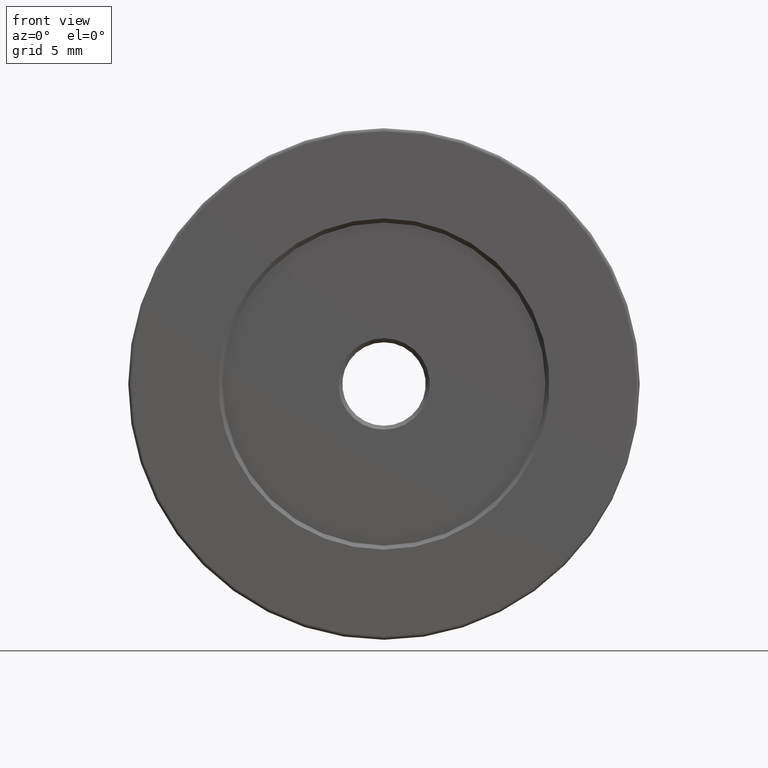
[diagram: clean part render]
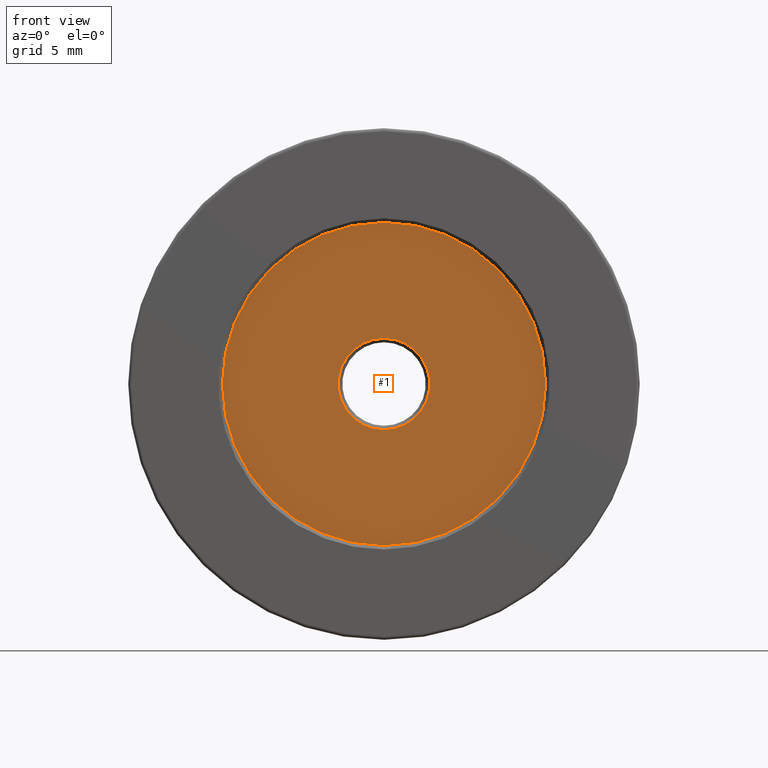
[diagram: same view with one face highlighted and labeled with its STEP entity id]
A machine part, front view. The second image highlights one B-rep face of the part: STEP entity #1.
In plain terms, the highlighted planar face has unit normal (0, -1, 0).
Its self-contained STEP definition (entity closure, byte-faithful):
#1 = ADVANCED_FACE ( 'NONE', ( #140, #541 ), #116, .T. ) ;
#25 = AXIS2_PLACEMENT_3D ( 'NONE', #163, #355, #302 ) ;
#34 = EDGE_CURVE ( 'NONE', #187, #490, #403, .T. ) ;
#78 = CARTESIAN_POINT ( 'NONE',  ( -7.546808913101048510, -6.593595127302728010, 38.00000000000000000 ) ) ;
#99 = DIRECTION ( 'NONE',  ( -0.000000000000000000, 1.000000000000000000, -0.000000000000000000 ) ) ;
#116 = PLANE ( 'NONE',  #362 ) ;
#117 = DIRECTION ( 'NONE',  ( -0.000000000000000000, 1.000000000000000000, -0.000000000000000000 ) ) ;
#137 = CIRCLE ( 'NONE', #567, 3.400000000000000355 ) ;
#138 = AXIS2_PLACEMENT_3D ( 'NONE', #252, #99, #161 ) ;
#140 = FACE_BOUND ( 'NONE', #419, .T. ) ;
#153 = CARTESIAN_POINT ( 'NONE',  ( -7.546808913101048510, -6.593595127302728010, 38.00000000000000000 ) ) ;
#161 = DIRECTION ( 'NONE',  ( 0.000000000000000000, 0.000000000000000000, -1.000000000000000000 ) ) ;
#163 = CARTESIAN_POINT ( 'NONE',  ( -7.546808913101048510, -6.593595127302728010, 38.00000000000000000 ) ) ;
#175 = ORIENTED_EDGE ( 'NONE', *, *, #341, .F. ) ;
#187 = VERTEX_POINT ( 'NONE', #520 ) ;
#203 = CARTESIAN_POINT ( 'NONE',  ( -7.546808913101048510, -6.593595127302728010, 25.99999999999999645 ) ) ;
#240 = DIRECTION ( 'NONE',  ( 0.000000000000000000, 0.000000000000000000, 1.000000000000000000 ) ) ;
#252 = CARTESIAN_POINT ( 'NONE',  ( -7.546808913101048510, -6.593595127302728010, 38.00000000000000000 ) ) ;
#253 = VERTEX_POINT ( 'NONE', #203 ) ;
#263 = CARTESIAN_POINT ( 'NONE',  ( -7.546808913101048510, -6.593595127302728010, 34.60000000000000142 ) ) ;
#302 = DIRECTION ( 'NONE',  ( 0.000000000000000000, 0.000000000000000000, 1.000000000000000000 ) ) ;
#314 = DIRECTION ( 'NONE',  ( 0.000000000000000000, 0.000000000000000000, -1.000000000000000000 ) ) ;
#316 = CARTESIAN_POINT ( 'NONE',  ( -7.546808913101046734, -6.593595127302728010, 50.00000000000000000 ) ) ;
#338 = DIRECTION ( 'NONE',  ( 0.000000000000000000, 0.000000000000000000, 1.000000000000000000 ) ) ;
#341 = EDGE_CURVE ( 'NONE', #253, #469, #416, .T. ) ;
#343 = ORIENTED_EDGE ( 'NONE', *, *, #34, .T. ) ;
#345 = CIRCLE ( 'NONE', #25, 12.00000000000000355 ) ;
#355 = DIRECTION ( 'NONE',  ( -0.000000000000000000, 1.000000000000000000, -0.000000000000000000 ) ) ;
#362 = AXIS2_PLACEMENT_3D ( 'NONE', #591, #584, #240 ) ;
#383 = AXIS2_PLACEMENT_3D ( 'NONE', #153, #486, #338 ) ;
#403 = CIRCLE ( 'NONE', #138, 3.400000000000000355 ) ;
#416 = CIRCLE ( 'NONE', #383, 12.00000000000000355 ) ;
#419 = EDGE_LOOP ( 'NONE', ( #539, #343 ) ) ;
#449 = EDGE_CURVE ( 'NONE', #490, #187, #137, .T. ) ;
#452 = EDGE_CURVE ( 'NONE', #469, #253, #345, .T. ) ;
#460 = EDGE_LOOP ( 'NONE', ( #175, #488 ) ) ;
#469 = VERTEX_POINT ( 'NONE', #316 ) ;
#486 = DIRECTION ( 'NONE',  ( -0.000000000000000000, 1.000000000000000000, -0.000000000000000000 ) ) ;
#488 = ORIENTED_EDGE ( 'NONE', *, *, #452, .F. ) ;
#490 = VERTEX_POINT ( 'NONE', #263 ) ;
#520 = CARTESIAN_POINT ( 'NONE',  ( -7.546808913101048510, -6.593595127302728010, 41.39999999999999858 ) ) ;
#539 = ORIENTED_EDGE ( 'NONE', *, *, #449, .T. ) ;
#541 = FACE_OUTER_BOUND ( 'NONE', #460, .T. ) ;
#567 = AXIS2_PLACEMENT_3D ( 'NONE', #78, #117, #314 ) ;
#584 = DIRECTION ( 'NONE',  ( 0.000000000000000000, -1.000000000000000000, 0.000000000000000000 ) ) ;
#591 = CARTESIAN_POINT ( 'NONE',  ( -7.546808913101048510, -6.593595127302728010, 38.00000000000000000 ) ) ;